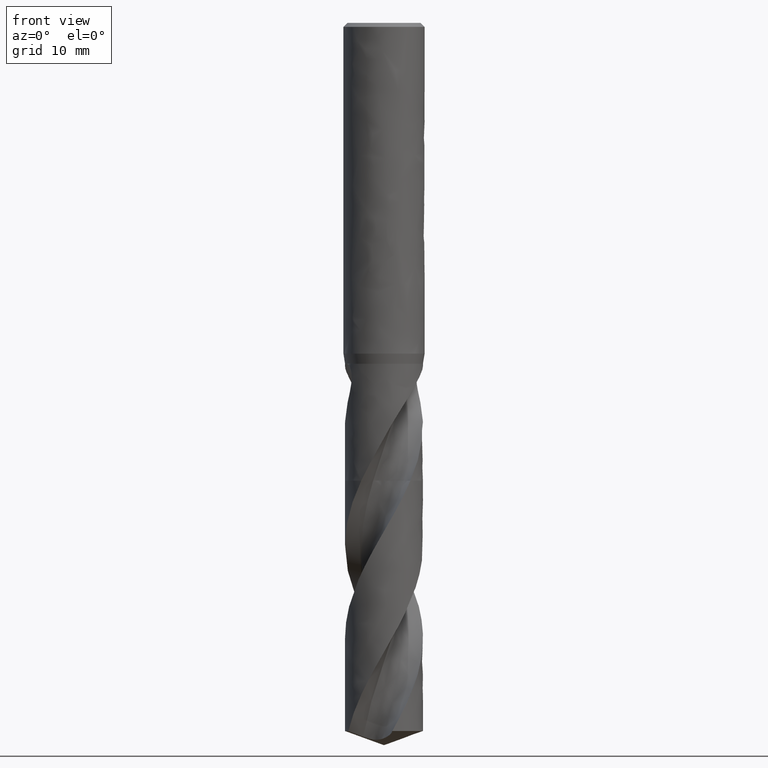
[diagram: clean part render]
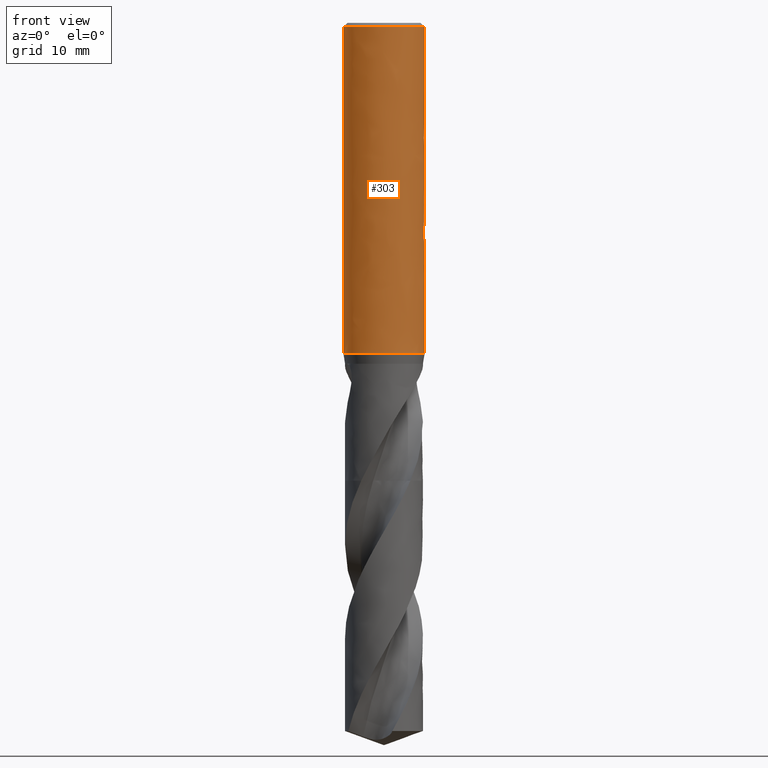
[diagram: same view with one face highlighted and labeled with its STEP entity id]
A machine part, front view. The second image highlights one B-rep face of the part: STEP entity #303.
In plain terms, the highlighted face is a freeform B-spline surface patch.
Its self-contained STEP definition (entity closure, byte-faithful):
#195 = VERTEX_POINT('', #196);
#196 = CARTESIAN_POINT('', (-5., 2.80144078538953E-15, -40.751));
#202 = EDGE_CURVE('', #195, #195, #203, .T.);
#203 = CIRCLE('', #204, 5.);
#204 = AXIS2_PLACEMENT_3D('', #205, #206, #207);
#205 = CARTESIAN_POINT('', (1.52791777258133E-31, 2.49527908560269E-15, -40.751));
#206 = DIRECTION('', (3.74939945665464E-33, 6.12323399573677E-17, -1.));
#207 = DIRECTION('', (-1., 6.12323399573677E-17, 0.));
#252 = VERTEX_POINT('', #253);
#253 = CARTESIAN_POINT('', (-5., 3.36777869765522E-16, -0.5));
#269 = EDGE_CURVE('', #252, #252, #270, .T.);
#270 = CIRCLE('', #271, 5.);
#271 = AXIS2_PLACEMENT_3D('', #272, #273, #274);
#272 = CARTESIAN_POINT('', (1.8746997283273E-33, 3.06161699786838E-17, -0.5));
#273 = DIRECTION('', (3.74939945665464E-33, 6.12323399573677E-17, -1.));
#274 = DIRECTION('', (-1., 6.12323399573677E-17, 0.));
#303 = ADVANCED_FACE('', (#304, #315), #501, .T.);
#304 = FACE_OUTER_BOUND('', #305, .T.);
#305 = EDGE_LOOP('', (#306, #312, #313, #314));
#306 = ORIENTED_EDGE('', *, *, #307, .T.);
#307 = EDGE_CURVE('', #195, #252, #308, .T.);
#308 = LINE('', #309, #310);
#309 = CARTESIAN_POINT('', (-5., 2.80144078538953E-15, -40.751));
#310 = VECTOR('', #311, 40.251);
#311 = DIRECTION('', (0., -2.46466291562401E-15, 40.251));
#312 = ORIENTED_EDGE('', *, *, #269, .T.);
#313 = ORIENTED_EDGE('', *, *, #307, .F.);
#314 = ORIENTED_EDGE('', *, *, #202, .F.);
#315 = FACE_BOUND('', #316, .T.);
#316 = EDGE_LOOP('', (#317, #327, #414, #422));
#317 = ORIENTED_EDGE('', *, *, #318, .F.);
#318 = EDGE_CURVE('', #319, #321, #323, .T.);
#319 = VERTEX_POINT('', #320);
#320 = CARTESIAN_POINT('', (3.57071421427142, 3.5, -16.5));
#321 = VERTEX_POINT('', #322);
#322 = CARTESIAN_POINT('', (3.57071421427142, 3.5, -23.5));
#323 = LINE('', #324, #325);
#324 = CARTESIAN_POINT('', (3.57071421427142, 3.5, -16.5));
#325 = VECTOR('', #326, 7.);
#326 = DIRECTION('', (4.44089209850063E-16, 4.44089209850063E-16, -7.));
#327 = ORIENTED_EDGE('', *, *, #328, .F.);
#328 = EDGE_CURVE('', #329, #319, #331, .T.);
#329 = VERTEX_POINT('', #330);
#330 = CARTESIAN_POINT('', (-3.57071421427143, 3.5, -16.5));
#331 = B_SPLINE_CURVE_WITH_KNOTS('', 3, (#332, #333, #334, #335, #336, #337, #338, #339, #340, #341, #342, #343, #344, #345, #346, #347, #348, #349, #350, #351, #352, #353, #354, #355, #356, #357, #358, #359, #360, #361, #362, #363, #364, #365, #366, #367, #368, #369, #370, #371, #372, #373, #374, #375, #376, #377, #378, #379, #380, #381, #382, #383, #384, #385, #386, #387, #388, #389, #390, #391, #392, #393, #394, #395, #396, #397, #398, #399, #400, #401, #402, #403, #404, #405, #406, #407, #408, #409, #410, #411, #412, #413), .UNSPECIFIED., .F., .U., (4, 3, 3, 3, 3, 3, 3, 3, 3, 3, 3, 3, 3, 3, 3, 3, 3, 3, 3, 3, 3, 3, 3, 3, 3, 3, 3, 4), (0., 0.034113884401858, 0.477744785271108, 0.921646138215239, 1.36587692968726, 1.66193288302492, 1.95811394690938, 2.25443514488297, 2.55091138328179, 2.84755630975293, 3.14438084834245, 3.44139155508659, 3.73858907509581, 4.03596708411747, 4.33180862682757, 4.62765016953767, 4.92502817855933, 5.22222569856855, 5.51923640531269, 5.81606094390222, 6.11270587037335, 6.40918210877217, 6.70550330674576, 7.00168437063023, 7.29774032396789, 7.74197111543991, 8.18587246838404, 8.66361725365514), .UNSPECIFIED.);
#332 = CARTESIAN_POINT('', (-3.57071421427143, 3.5, -16.5));
#333 = CARTESIAN_POINT('', (-3.56427504914016, 3.50656926241779, -16.4933150699973));
#334 = CARTESIAN_POINT('', (-3.55781171392695, 3.51312691832153, -16.4866419508691));
#335 = CARTESIAN_POINT('', (-3.55132420209363, 3.51967277053198, -16.4799808432664));
#336 = CARTESIAN_POINT('', (-3.46695794567111, 3.60479770907223, -16.3933570764815));
#337 = CARTESIAN_POINT('', (-3.37844247985145, 3.6879854546721, -16.3087046115544));
#338 = CARTESIAN_POINT('', (-3.28578814351441, 3.7687658823467, -16.2265018511453));
#339 = CARTESIAN_POINT('', (-3.19307732202844, 3.84959555644267, -16.1442489772137));
#340 = CARTESIAN_POINT('', (-3.09609712074416, 3.92812245563972, -16.0643394240436));
#341 = CARTESIAN_POINT('', (-2.99492394308079, 4.00380201498054, -15.9873273449615));
#342 = CARTESIAN_POINT('', (-2.89367568039573, 4.07953773941852, -15.9102581118613));
#343 = CARTESIAN_POINT('', (-2.78806685747398, 4.15253987393855, -15.835970600071));
#344 = CARTESIAN_POINT('', (-2.67827641976912, 4.22218372638008, -15.7651005009515));
#345 = CARTESIAN_POINT('', (-2.60510699224167, 4.26859761196501, -15.7178693878437));
#346 = CARTESIAN_POINT('', (-2.53000964820202, 4.31356544734041, -15.6721097861197));
#347 = CARTESIAN_POINT('', (-2.45307301645999, 4.35688337873714, -15.6280291388821));
#348 = CARTESIAN_POINT('', (-2.37610387199879, 4.40021961589677, -15.5839298635649));
#349 = CARTESIAN_POINT('', (-2.29722271975626, 4.441944015062, -15.5414708065071));
#350 = CARTESIAN_POINT('', (-2.2165553058254, 4.48183919571166, -15.500873175734));
#351 = CARTESIAN_POINT('', (-2.13584972519196, 4.52175325222979, -15.4602563367377));
#352 = CARTESIAN_POINT('', (-2.05327275837509, 4.55987689392243, -15.4214614371042));
#353 = CARTESIAN_POINT('', (-1.9689953770587, 4.59598272463263, -15.3847198768441));
#354 = CARTESIAN_POINT('', (-1.88467390034474, 4.63210744654394, -15.3479590927581));
#355 = CARTESIAN_POINT('', (-1.79855309962361, 4.6662530102042, -15.3132123147402));
#356 = CARTESIAN_POINT('', (-1.71085713788038, 4.69818772014953, -15.2807153178074));
#357 = CARTESIAN_POINT('', (-1.62311127917806, 4.7301406002008, -15.2481998308405));
#358 = CARTESIAN_POINT('', (-1.5336765186139, 4.75991992907671, -15.2178961656186));
#359 = CARTESIAN_POINT('', (-1.44283688724849, 4.78729795571522, -15.1900360833063));
#360 = CARTESIAN_POINT('', (-1.35194225444139, 4.81469255915962, -15.1621591323137));
#361 = CARTESIAN_POINT('', (-1.25951372693075, 4.83972032116018, -15.1366906966724));
#362 = CARTESIAN_POINT('', (-1.16589904343752, 4.86216818101879, -15.1138475885239));
#363 = CARTESIAN_POINT('', (-1.07222564487661, 4.88463012016027, -15.090990153193));
#364 = CARTESIAN_POINT('', (-0.977222202676107, 4.90454207535022, -15.0707276003832));
#365 = CARTESIAN_POINT('', (-0.88129942868599, 4.92171832970943, -15.0532489169637));
#366 = CARTESIAN_POINT('', (-0.785316321360413, 4.9389053875585, -15.0357592398331));
#367 = CARTESIAN_POINT('', (-0.688256648043104, 4.9533803669116, -15.0210293938302));
#368 = CARTESIAN_POINT('', (-0.590587307962139, 4.96499815021859, -15.0092070516471));
#369 = CARTESIAN_POINT('', (-0.492858652975936, 4.97662298904286, -14.9973775297174));
#370 = CARTESIAN_POINT('', (-0.3943524604973, 4.98540636972409, -14.9884394966009));
#371 = CARTESIAN_POINT('', (-0.295578376007081, 4.9912556960786, -14.9824871788586));
#372 = CARTESIAN_POINT('', (-0.197314628692681, 4.9970748006527, -14.9765656150235));
#373 = CARTESIAN_POINT('', (-0.098613847570033, 5., -14.9735889105418));
#374 = CARTESIAN_POINT('', (1.53080849893419E-16, 5., -14.9735889105418));
#375 = CARTESIAN_POINT('', (0.0986138475700336, 5., -14.9735889105418));
#376 = CARTESIAN_POINT('', (0.197314628692682, 4.9970748006527, -14.9765656150235));
#377 = CARTESIAN_POINT('', (0.295578376007083, 4.9912556960786, -14.9824871788586));
#378 = CARTESIAN_POINT('', (0.394352460497301, 4.98540636972409, -14.9884394966009));
#379 = CARTESIAN_POINT('', (0.492858652975937, 4.97662298904286, -14.9973775297174));
#380 = CARTESIAN_POINT('', (0.59058730796214, 4.96499815021859, -15.0092070516471));
#381 = CARTESIAN_POINT('', (0.688256648043106, 4.9533803669116, -15.0210293938302));
#382 = CARTESIAN_POINT('', (0.785316321360415, 4.9389053875585, -15.0357592398331));
#383 = CARTESIAN_POINT('', (0.881299428685991, 4.92171832970943, -15.0532489169637));
#384 = CARTESIAN_POINT('', (0.977222202676108, 4.90454207535022, -15.0707276003832));
#385 = CARTESIAN_POINT('', (1.07222564487661, 4.88463012016027, -15.090990153193));
#386 = CARTESIAN_POINT('', (1.16589904343752, 4.86216818101879, -15.1138475885239));
#387 = CARTESIAN_POINT('', (1.25951372693075, 4.83972032116018, -15.1366906966724));
#388 = CARTESIAN_POINT('', (1.3519422544414, 4.81469255915962, -15.1621591323137));
#389 = CARTESIAN_POINT('', (1.44283688724849, 4.78729795571522, -15.1900360833063));
#390 = CARTESIAN_POINT('', (1.53367651861391, 4.75991992907671, -15.2178961656186));
#391 = CARTESIAN_POINT('', (1.62311127917806, 4.7301406002008, -15.2481998308405));
#392 = CARTESIAN_POINT('', (1.71085713788038, 4.69818772014953, -15.2807153178074));
#393 = CARTESIAN_POINT('', (1.79855309962361, 4.6662530102042, -15.3132123147402));
#394 = CARTESIAN_POINT('', (1.88467390034474, 4.63210744654394, -15.3479590927581));
#395 = CARTESIAN_POINT('', (1.96899537705871, 4.59598272463263, -15.3847198768441));
#396 = CARTESIAN_POINT('', (2.05327275837509, 4.55987689392243, -15.4214614371042));
#397 = CARTESIAN_POINT('', (2.13584972519196, 4.52175325222979, -15.4602563367377));
#398 = CARTESIAN_POINT('', (2.21655530582539, 4.48183919571167, -15.500873175734));
#399 = CARTESIAN_POINT('', (2.29722271975626, 4.441944015062, -15.5414708065071));
#400 = CARTESIAN_POINT('', (2.37610387199879, 4.40021961589676, -15.5839298635649));
#401 = CARTESIAN_POINT('', (2.45307301645999, 4.35688337873714, -15.6280291388821));
#402 = CARTESIAN_POINT('', (2.53000964820203, 4.31356544734041, -15.6721097861197));
#403 = CARTESIAN_POINT('', (2.60510699224168, 4.26859761196501, -15.7178693878437));
#404 = CARTESIAN_POINT('', (2.67827641976912, 4.22218372638008, -15.7651005009515));
#405 = CARTESIAN_POINT('', (2.78806685747398, 4.15253987393854, -15.835970600071));
#406 = CARTESIAN_POINT('', (2.89367568039574, 4.07953773941852, -15.9102581118613));
#407 = CARTESIAN_POINT('', (2.99492394308079, 4.00380201498054, -15.9873273449615));
#408 = CARTESIAN_POINT('', (3.09609712074417, 3.92812245563972, -16.0643394240436));
#409 = CARTESIAN_POINT('', (3.19307732202845, 3.84959555644267, -16.1442489772137));
#410 = CARTESIAN_POINT('', (3.28578814351442, 3.7687658823467, -16.2265018511453));
#411 = CARTESIAN_POINT('', (3.38556732014761, 3.68177368230406, -16.3150257570396));
#412 = CARTESIAN_POINT('', (3.48053751299862, 3.59199863686598, -16.4063815069818));
#413 = CARTESIAN_POINT('', (3.57071421427142, 3.5, -16.5));
#414 = ORIENTED_EDGE('', *, *, #415, .T.);
#415 = EDGE_CURVE('', #329, #416, #418, .T.);
#416 = VERTEX_POINT('', #417);
#417 = CARTESIAN_POINT('', (-3.57071421427142, 3.5, -23.5));
#418 = LINE('', #419, #420);
#419 = CARTESIAN_POINT('', (-3.57071421427143, 3.5, -16.5));
#420 = VECTOR('', #421, 7.);
#421 = DIRECTION('', (8.88178419700125E-16, 8.88178419700125E-16, -7.));
#422 = ORIENTED_EDGE('', *, *, #423, .T.);
#423 = EDGE_CURVE('', #416, #321, #424, .T.);
#424 = B_SPLINE_CURVE_WITH_KNOTS('', 3, (#425, #426, #427, #428, #429, #430, #431, #432, #433, #434, #435, #436, #437, #438, #439, #440, #441, #442, #443, #444, #445, #446, #447, #448, #449, #450, #451, #452, #453, #454, #455, #456, #457, #458, #459, #460, #461, #462, #463, #464, #465, #466, #467, #468, #469, #470, #471, #472, #473, #474, #475, #476, #477, #478, #479, #480, #481, #482, #483, #484, #485, #486, #487, #488, #489, #490, #491, #492, #493, #494, #495, #496, #497, #498, #499, #500), .UNSPECIFIED., .F., .U., (4, 3, 3, 3, 3, 3, 3, 3, 3, 3, 3, 3, 3, 3, 3, 3, 3, 3, 3, 3, 3, 3, 3, 3, 3, 4), (0., 0.443468649789138, 0.886759988140895, 1.32984152591458, 1.77267283862577, 2.21520517630396, 2.51020893408757, 2.80508585275751, 3.09982399025188, 3.39441275289527, 3.68884404188132, 3.98311346905247, 4.3316016316353, 4.6274431743454, 4.92482118336705, 5.22201870337628, 5.51902941012042, 5.81585394870994, 6.11249887518107, 6.40897511357989, 6.70529631155349, 7.00147737543795, 7.29753332877561, 7.74176412024763, 8.18566547319177, 8.66341025846286), .UNSPECIFIED.);
#425 = CARTESIAN_POINT('', (-3.57071421427142, 3.5, -23.5));
#426 = CARTESIAN_POINT('', (-3.48700730382719, 3.58539812998743, -23.5869017684212));
#427 = CARTESIAN_POINT('', (-3.39916377603426, 3.66888595387015, -23.6718595952275));
#428 = CARTESIAN_POINT('', (-3.30719006709263, 3.74999918134983, -23.7544010151786));
#429 = CARTESIAN_POINT('', (-3.21525313186779, 3.83107997744351, -23.8369094327116));
#430 = CARTESIAN_POINT('', (-3.11906671622979, 3.90989436363995, -23.9171115347777));
#431 = CARTESIAN_POINT('', (-3.018700637755, 3.98590597726775, -23.9944615147571));
#432 = CARTESIAN_POINT('', (-2.91838206045937, 4.06188161617848, -24.0717748865984));
#433 = CARTESIAN_POINT('', (-2.81373073052818, 4.13517346377029, -24.1463572125526));
#434 = CARTESIAN_POINT('', (-2.70491450565913, 4.20516795349214, -24.2175841227608));
#435 = CARTESIAN_POINT('', (-2.59615973346719, 4.27512291465305, -24.2887708084133));
#436 = CARTESIAN_POINT('', (-2.48304396851809, 4.34190978304565, -24.3567336194432));
#437 = CARTESIAN_POINT('', (-2.36587881626761, 4.40484022715245, -24.4207721046093));
#438 = CARTESIAN_POINT('', (-2.24879276740087, 4.46772818412912, -24.4847673545577));
#439 = CARTESIAN_POINT('', (-2.12740790123163, 4.52689698961025, -24.5449779684482));
#440 = CARTESIAN_POINT('', (-2.00223466237747, 4.58159975955716, -24.6006439115622));
#441 = CARTESIAN_POINT('', (-1.91879087151313, 4.61806607246025, -24.6377523011669));
#442 = CARTESIAN_POINT('', (-1.83355420105374, 4.65259752685798, -24.6728917644521));
#443 = CARTESIAN_POINT('', (-1.74673807718802, 4.68496596462576, -24.7058301260235));
#444 = CARTESIAN_POINT('', (-1.65995928057632, 4.71732048533706, -24.7387543254954));
#445 = CARTESIAN_POINT('', (-1.57149440783041, 4.74755320636072, -24.7695193659188));
#446 = CARTESIAN_POINT('', (-1.48161398798959, 4.77543924582795, -24.7978964058413));
#447 = CARTESIAN_POINT('', (-1.39177586956179, 4.80331216098096, -24.8262600903647));
#448 = CARTESIAN_POINT('', (-1.30040095201485, 4.82887767849311, -24.8522757499902));
#449 = CARTESIAN_POINT('', (-1.20782059197667, 4.85192430048093, -24.8757281629081));
#450 = CARTESIAN_POINT('', (-1.11528715215589, 4.87495924231852, -24.8991686900187));
#451 = CARTESIAN_POINT('', (-1.02141258642229, 4.89551097389568, -24.92008228401));
#452 = CARTESIAN_POINT('', (-0.926588590795422, 4.91339328605069, -24.9382794570624));
#453 = CARTESIAN_POINT('', (-0.831815283732708, 4.93126603914081, -24.9564669027396));
#454 = CARTESIAN_POINT('', (-0.73594363125192, 4.94649964746766, -24.9719687351947));
#455 = CARTESIAN_POINT('', (-0.639419612000052, 4.95894571051044, -24.9846339409604));
#456 = CARTESIAN_POINT('', (-0.542948656242191, 4.97138493140556, -24.9972921841061));
#457 = CARTESIAN_POINT('', (-0.44566551494497, 4.98105970853072, -25.007137308834));
#458 = CARTESIAN_POINT('', (-0.348058242038247, 4.98787083434899, -25.0140683608211));
#459 = CARTESIAN_POINT('', (-0.232466963946687, 4.99593690068945, -25.0222764495614));
#460 = CARTESIAN_POINT('', (-0.116162720860941, 5., -25.0264110894582));
#461 = CARTESIAN_POINT('', (1.04125926959354E-15, 5., -25.0264110894582));
#462 = CARTESIAN_POINT('', (0.0986138475700347, 5., -25.0264110894582));
#463 = CARTESIAN_POINT('', (0.197314628692683, 4.9970748006527, -25.0234343849765));
#464 = CARTESIAN_POINT('', (0.295578376007085, 4.9912556960786, -25.0175128211414));
#465 = CARTESIAN_POINT('', (0.394352460497303, 4.98540636972409, -25.0115605033991));
#466 = CARTESIAN_POINT('', (0.492858652975939, 4.97662298904286, -25.0026224702826));
#467 = CARTESIAN_POINT('', (0.590587307962142, 4.96499815021859, -24.9907929483529));
#468 = CARTESIAN_POINT('', (0.688256648043107, 4.9533803669116, -24.9789706061698));
#469 = CARTESIAN_POINT('', (0.785316321360417, 4.9389053875585, -24.964240760167));
#470 = CARTESIAN_POINT('', (0.881299428685993, 4.92171832970943, -24.9467510830363));
#471 = CARTESIAN_POINT('', (0.97722220267611, 4.90454207535022, -24.9292723996168));
#472 = CARTESIAN_POINT('', (1.07222564487661, 4.88463012016027, -24.909009846807));
#473 = CARTESIAN_POINT('', (1.16589904343752, 4.86216818101879, -24.8861524114761));
#474 = CARTESIAN_POINT('', (1.25951372693075, 4.83972032116019, -24.8633093033276));
#475 = CARTESIAN_POINT('', (1.35194225444139, 4.81469255915962, -24.8378408676863));
#476 = CARTESIAN_POINT('', (1.44283688724849, 4.78729795571523, -24.8099639166937));
#477 = CARTESIAN_POINT('', (1.5336765186139, 4.75991992907671, -24.7821038343814));
#478 = CARTESIAN_POINT('', (1.62311127917806, 4.73014060020081, -24.7518001691595));
#479 = CARTESIAN_POINT('', (1.71085713788038, 4.69818772014953, -24.7192846821926));
#480 = CARTESIAN_POINT('', (1.79855309962361, 4.6662530102042, -24.6867876852598));
#481 = CARTESIAN_POINT('', (1.88467390034474, 4.63210744654394, -24.6520409072419));
#482 = CARTESIAN_POINT('', (1.9689953770587, 4.59598272463263, -24.6152801231559));
#483 = CARTESIAN_POINT('', (2.05327275837509, 4.55987689392243, -24.5785385628958));
#484 = CARTESIAN_POINT('', (2.13584972519196, 4.52175325222979, -24.5397436632624));
#485 = CARTESIAN_POINT('', (2.21655530582539, 4.48183919571167, -24.499126824266));
#486 = CARTESIAN_POINT('', (2.29722271975626, 4.441944015062, -24.4585291934929));
#487 = CARTESIAN_POINT('', (2.37610387199879, 4.40021961589677, -24.4160701364351));
#488 = CARTESIAN_POINT('', (2.45307301645999, 4.35688337873714, -24.3719708611179));
#489 = CARTESIAN_POINT('', (2.53000964820203, 4.31356544734041, -24.3278902138803));
#490 = CARTESIAN_POINT('', (2.60510699224168, 4.26859761196501, -24.2821306121563));
#491 = CARTESIAN_POINT('', (2.67827641976912, 4.22218372638008, -24.2348994990485));
#492 = CARTESIAN_POINT('', (2.78806685747398, 4.15253987393855, -24.164029399929));
#493 = CARTESIAN_POINT('', (2.89367568039574, 4.07953773941852, -24.0897418881387));
#494 = CARTESIAN_POINT('', (2.99492394308079, 4.00380201498054, -24.0126726550385));
#495 = CARTESIAN_POINT('', (3.09609712074417, 3.92812245563972, -23.9356605759564));
#496 = CARTESIAN_POINT('', (3.19307732202845, 3.84959555644267, -23.8557510227863));
#497 = CARTESIAN_POINT('', (3.28578814351442, 3.7687658823467, -23.7734981488547));
#498 = CARTESIAN_POINT('', (3.38556732014761, 3.68177368230406, -23.6849742429604));
#499 = CARTESIAN_POINT('', (3.48053751299862, 3.59199863686598, -23.5936184930182));
#500 = CARTESIAN_POINT('', (3.57071421427142, 3.5, -23.5));
#501 = (
   BOUNDED_SURFACE ()
   B_SPLINE_SURFACE (1, 2, ((#502, #503, #504, #505, #506, #507, #508, #509, #510), (#511, #512, #513, #514, #515, #516, #517, #518, #519)), .UNSPECIFIED., .F., .T., .U.)
   B_SPLINE_SURFACE_WITH_KNOTS ((2, 2), (3, 2, 2, 2, 3), (0., 1.), (0., 7.85398163397448, 15.707963267949, 23.5619449019235, 31.4159265358979), .UNSPECIFIED.)
   GEOMETRIC_REPRESENTATION_ITEM ()
   RATIONAL_B_SPLINE_SURFACE (((1., 0.707106781186548, 1., 0.707106781186548, 1., 0.707106781186548, 1., 0.707106781186548, 1.), (1., 0.707106781186548, 1., 0.707106781186548, 1., 0.707106781186548, 1., 0.707106781186548, 1.)))
   REPRESENTATION_ITEM ('')
   SURFACE ()
);
#502 = CARTESIAN_POINT('', (-5., 2.80144078538953E-15, -40.751));
#503 = CARTESIAN_POINT('', (-5., 5., -40.751));
#504 = CARTESIAN_POINT('', (1.4791141972894E-31, 5., -40.751));
#505 = CARTESIAN_POINT('', (5., 5., -40.751));
#506 = CARTESIAN_POINT('', (5., 2.80144078538953E-15, -40.751));
#507 = CARTESIAN_POINT('', (5., -5., -40.751));
#508 = CARTESIAN_POINT('', (6.12323399573677E-16, -5., -40.751));
#509 = CARTESIAN_POINT('', (-5., -5., -40.751));
#510 = CARTESIAN_POINT('', (-5., 2.80144078538953E-15, -40.751));
#511 = CARTESIAN_POINT('', (-5., 3.36777869765522E-16, -0.5));
#512 = CARTESIAN_POINT('', (-5., 5., -0.5));
#513 = CARTESIAN_POINT('', (0., 5., -0.5));
#514 = CARTESIAN_POINT('', (5., 5., -0.5));
#515 = CARTESIAN_POINT('', (5., 3.36777869765522E-16, -0.5));
#516 = CARTESIAN_POINT('', (5., -5., -0.5));
#517 = CARTESIAN_POINT('', (6.12323399573677E-16, -5., -0.5));
#518 = CARTESIAN_POINT('', (-5., -5., -0.5));
#519 = CARTESIAN_POINT('', (-5., 3.36777869765522E-16, -0.5));